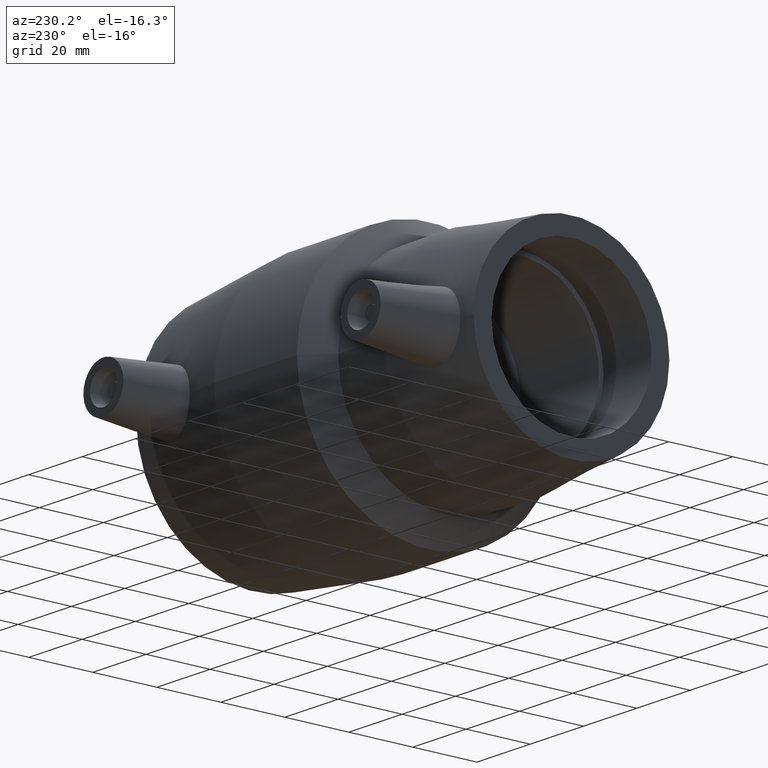
[diagram: clean part render]
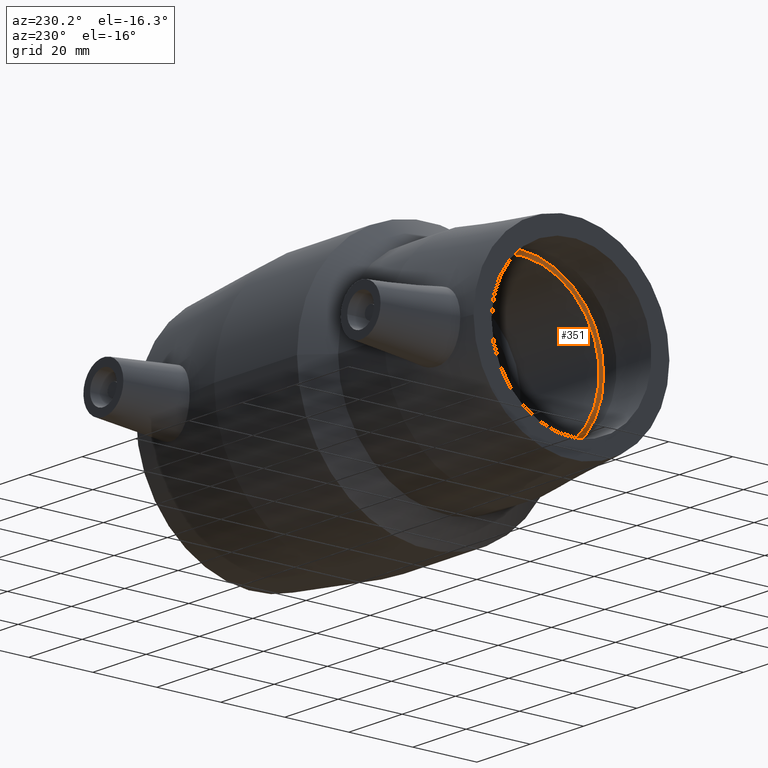
[diagram: same view with one face highlighted and labeled with its STEP entity id]
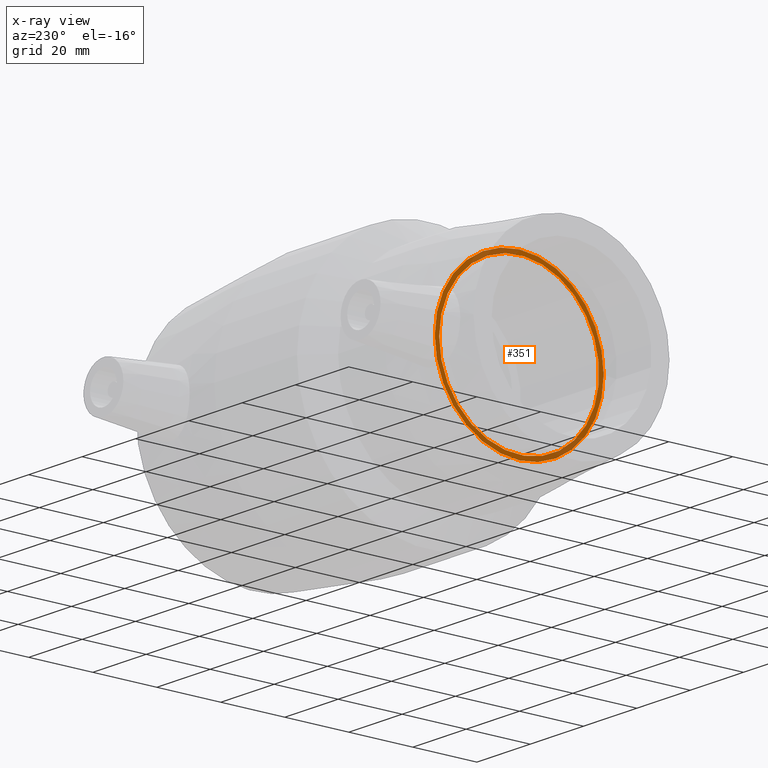
[diagram: x-ray of the same camera — body ghosted, the highlighted face saturated]
A machine part, auxiliary view. The second image highlights one B-rep face of the part: STEP entity #351.
The next image is the same camera in x-ray: the body ghosted, the highlighted face saturated — about 18% of this face is hidden behind the body in this view.
In plain terms, the highlighted planar face has unit normal (-1, -0, 0).
Its self-contained STEP definition (entity closure, byte-faithful):
#50=FACE_BOUND('',#150,.T.);
#93=FACE_OUTER_BOUND('',#149,.T.);
#149=EDGE_LOOP('',(#302));
#150=EDGE_LOOP('',(#303));
#184=CIRCLE('',#408,25.);
#185=CIRCLE('',#410,26.3887028695775);
#215=VERTEX_POINT('',#685);
#216=VERTEX_POINT('',#688);
#246=EDGE_CURVE('',#215,#215,#184,.T.);
#247=EDGE_CURVE('',#216,#216,#185,.T.);
#302=ORIENTED_EDGE('',*,*,#247,.F.);
#303=ORIENTED_EDGE('',*,*,#246,.T.);
#323=PLANE('',#409);
#351=ADVANCED_FACE('',(#93,#50),#323,.T.);
#408=AXIS2_PLACEMENT_3D('',#686,#520,#521);
#409=AXIS2_PLACEMENT_3D('',#687,#522,#523);
#410=AXIS2_PLACEMENT_3D('',#689,#524,#525);
#520=DIRECTION('center_axis',(1.,1.83697019872103E-16,0.));
#521=DIRECTION('ref_axis',(0.,0.,-1.));
#522=DIRECTION('center_axis',(-1.,-1.83697019872103E-16,0.));
#523=DIRECTION('ref_axis',(0.,0.,1.));
#524=DIRECTION('center_axis',(1.,1.83697019872103E-16,0.));
#525=DIRECTION('ref_axis',(0.,0.,-1.));
#685=CARTESIAN_POINT('',(-39.9,25.,0.));
#686=CARTESIAN_POINT('Origin',(-39.9,3.60046158949322E-15,0.));
#687=CARTESIAN_POINT('Origin',(-39.9,26.3887028695775,0.));
#688=CARTESIAN_POINT('',(-39.9,26.3887028695775,0.));
#689=CARTESIAN_POINT('Origin',(-39.9,3.60046158949322E-15,0.));